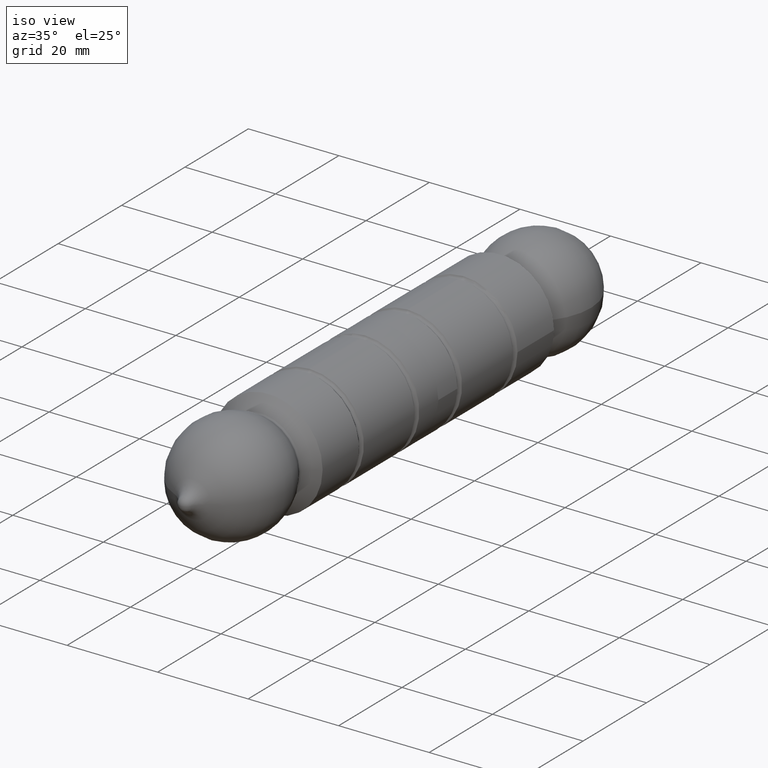
[diagram: clean part render]
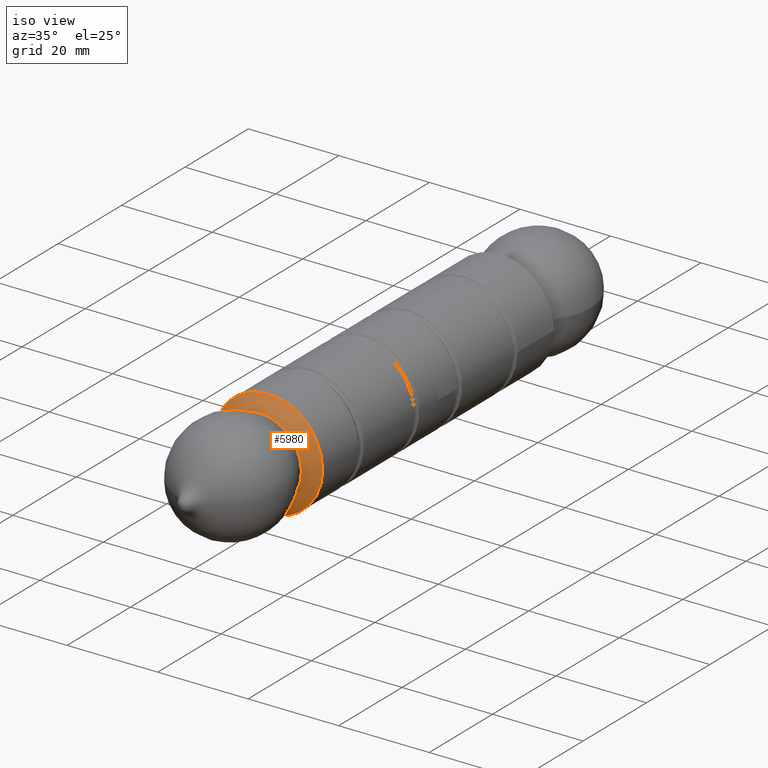
[diagram: same view with one face highlighted and labeled with its STEP entity id]
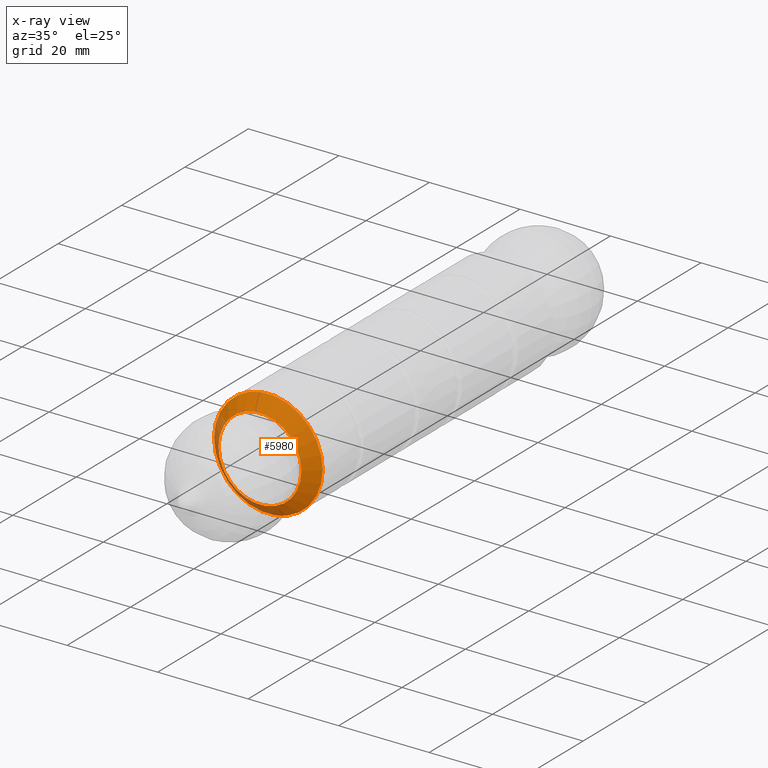
[diagram: x-ray of the same camera — body ghosted, the highlighted face saturated]
A machine part, iso view. The second image highlights one B-rep face of the part: STEP entity #5980.
The next image is the same camera in x-ray: the body ghosted, the highlighted face saturated — about 13% of this face is hidden behind the body in this view.
In plain terms, the highlighted conical surface has half-angle 47.162 deg.
Its self-contained STEP definition (entity closure, byte-faithful):
#279 = EDGE_CURVE ( 'NONE', #11379, #11379, #7416, .T. ) ;
#737 = EDGE_LOOP ( 'NONE', ( #10027 ) ) ;
#1127 = CARTESIAN_POINT ( 'NONE',  ( -12.00000000000000533, -36.50000000000000000, 0.000000000000000000 ) ) ;
#2171 = EDGE_CURVE ( 'NONE', #9158, #9158, #4641, .T. ) ;
#2262 = CONICAL_SURFACE ( 'NONE', #8607, 9.160034424963205524, 0.8231275898321853690 ) ;
#2562 = CARTESIAN_POINT ( 'NONE',  ( 9.191008925220659410E-16, -39.13336202080267157, 0.000000000000000000 ) ) ;
#2679 = DIRECTION ( 'NONE',  ( -2.348637696994923334E-17, 1.000000000000000000, -0.000000000000000000 ) ) ;
#2769 = CARTESIAN_POINT ( 'NONE',  ( 9.191008925220659410E-16, -39.13336202080267157, 0.000000000000000000 ) ) ;
#3692 = AXIS2_PLACEMENT_3D ( 'NONE', #10822, #5166, #11758 ) ;
#4641 = CIRCLE ( 'NONE', #3692, 12.00000000000000533 ) ;
#4763 = FACE_BOUND ( 'NONE', #737, .T. ) ;
#5166 = DIRECTION ( 'NONE',  ( -2.348637696994923334E-17, 1.000000000000000000, -0.000000000000000000 ) ) ;
#5390 = DIRECTION ( 'NONE',  ( -2.348637696994923334E-17, 1.000000000000000000, -0.000000000000000000 ) ) ;
#5928 = EDGE_LOOP ( 'NONE', ( #10555 ) ) ;
#5980 = ADVANCED_FACE ( 'NONE', ( #7247, #4763 ), #2262, .T. ) ;
#7247 = FACE_OUTER_BOUND ( 'NONE', #5928, .T. ) ;
#7416 = CIRCLE ( 'NONE', #12035, 9.160034424963205524 ) ;
#8138 = DIRECTION ( 'NONE',  ( -1.000000000000000000, 0.000000000000000000, 0.000000000000000000 ) ) ;
#8607 = AXIS2_PLACEMENT_3D ( 'NONE', #2562, #5390, #8138 ) ;
#9158 = VERTEX_POINT ( 'NONE', #1127 ) ;
#9354 = DIRECTION ( 'NONE',  ( -1.000000000000000000, 0.000000000000000000, 0.000000000000000000 ) ) ;
#10027 = ORIENTED_EDGE ( 'NONE', *, *, #279, .T. ) ;
#10555 = ORIENTED_EDGE ( 'NONE', *, *, #2171, .F. ) ;
#10822 = CARTESIAN_POINT ( 'NONE',  ( 8.572527594031470232E-16, -36.50000000000000000, 0.000000000000000000 ) ) ;
#11379 = VERTEX_POINT ( 'NONE', #11450 ) ;
#11450 = CARTESIAN_POINT ( 'NONE',  ( -9.160034424963203747, -39.13336202080267157, 0.000000000000000000 ) ) ;
#11758 = DIRECTION ( 'NONE',  ( -1.000000000000000000, 0.000000000000000000, 0.000000000000000000 ) ) ;
#12035 = AXIS2_PLACEMENT_3D ( 'NONE', #2769, #2679, #9354 ) ;